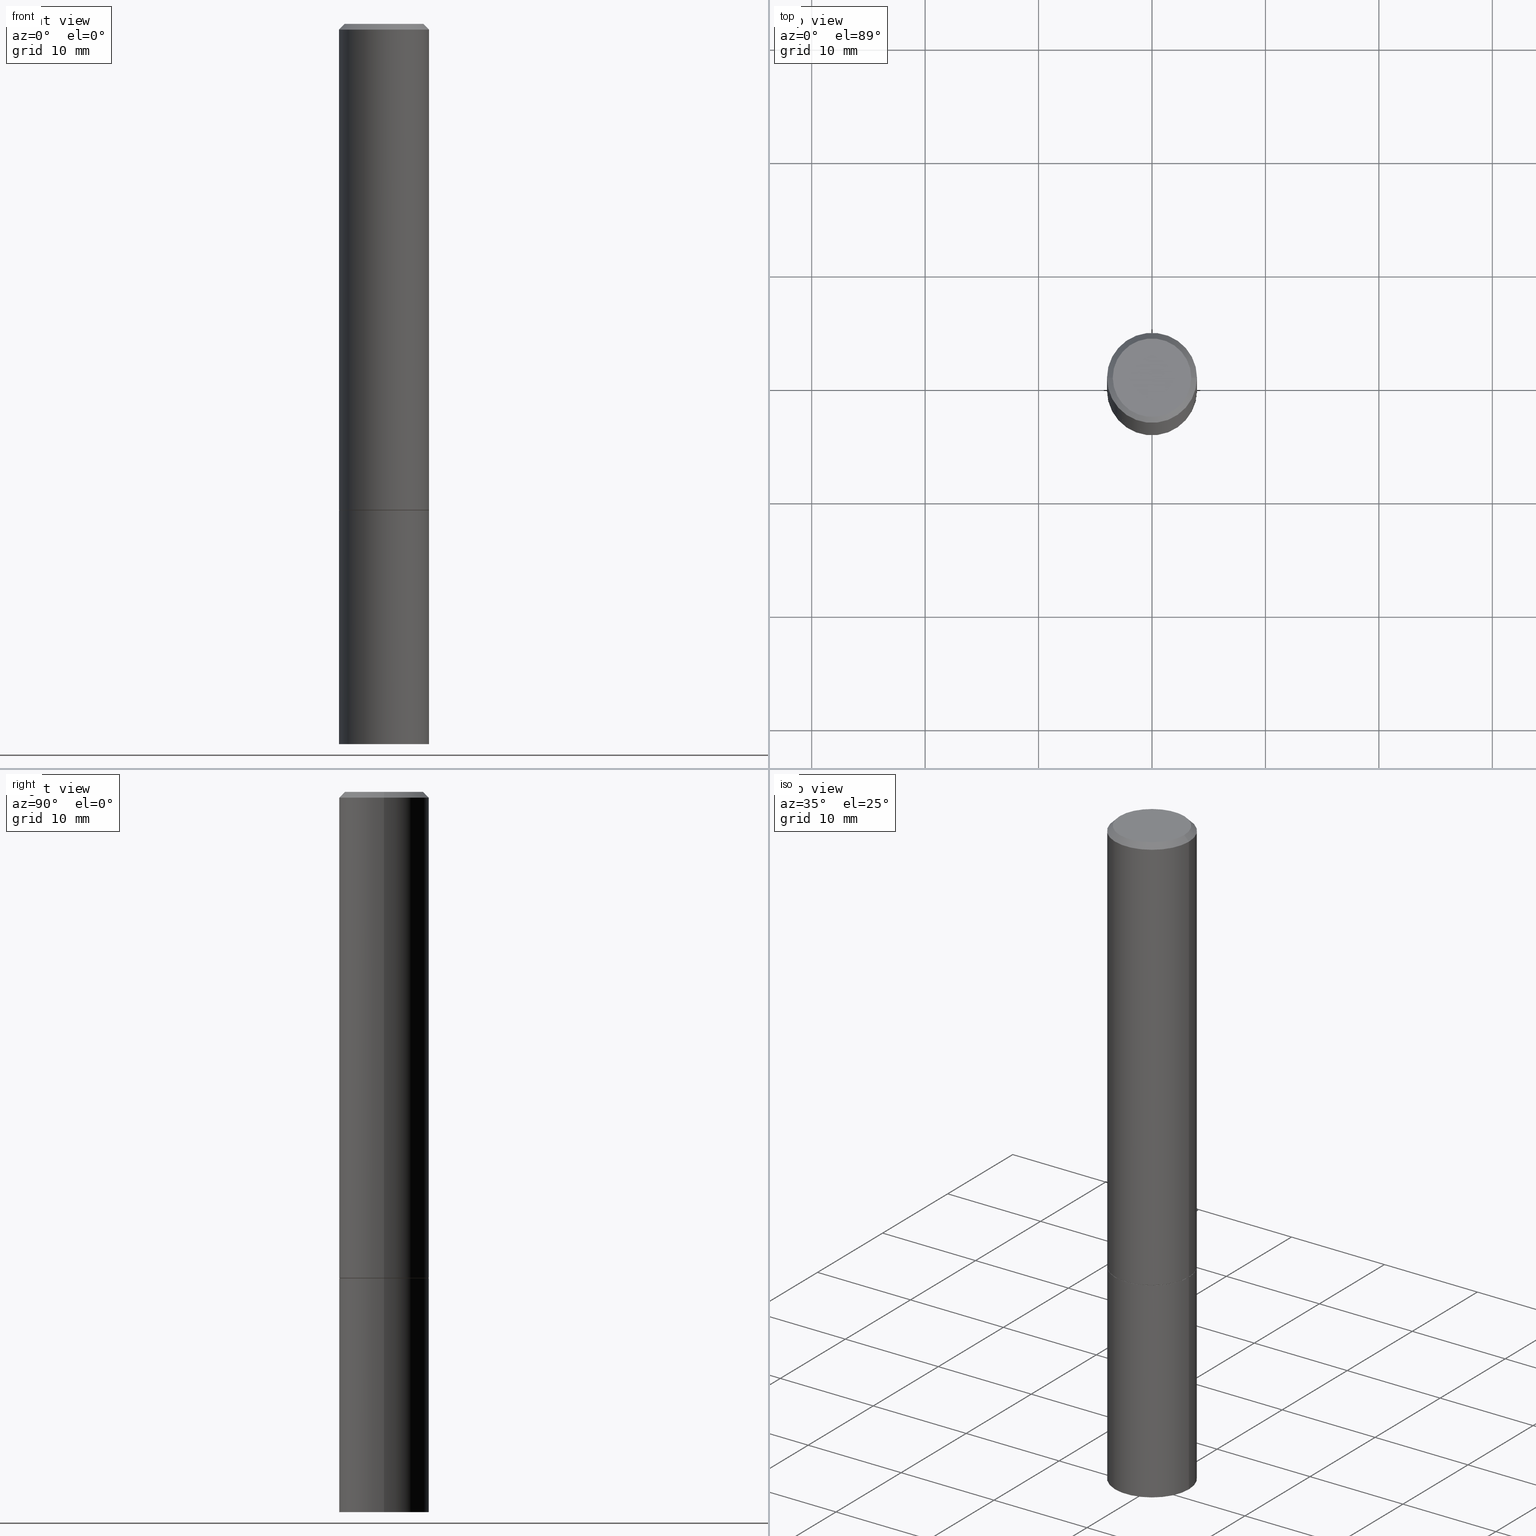
[diagram: canonical four-view strip — front | top / right | iso, engineering-drawing reading convention]
A machine part, canonical four-view strip (front | top / right | iso — engineering-drawing reading convention). The complete STEP part file that produces these views, byte-faithful:
ISO-10303-21;
HEADER;
FILE_DESCRIPTION (( 'STEP AP203' ),
    '1' );
FILE_NAME ('39739.STEP',
    '2024-02-28T01:10:47',
    ( '' ),
    ( '' ),
    'SwSTEP 2.0',
    'SolidWorks 2023',
    '' );
FILE_SCHEMA (( 'CONFIG_CONTROL_DESIGN' ));
ENDSEC;

DATA;
#1 = AXIS2_PLACEMENT_3D ( 'NONE', #130, #101, #365 ) ;
#2 = EDGE_CURVE ( 'NONE', #183, #64, #260, .T. ) ;
#3 = APPROVAL_DATE_TIME ( #26, #337 ) ;
#4 = AXIS2_PLACEMENT_3D ( 'NONE', #275, #273, #48 ) ;
#5 = ADVANCED_FACE ( 'NONE', ( #179 ), #160, .T. ) ;
#6 = DIRECTION ( 'NONE',  ( -2.445468806185136597E-29, 3.491481338843145583E-15, 1.000000000000000000 ) ) ;
#7 = APPROVAL ( #241, 'UNSPECIFIED' ) ;
#8 = EDGE_LOOP ( 'NONE', ( #320, #66 ) ) ;
#9 = VERTEX_POINT ( 'NONE', #216 ) ;
#10 = EDGE_LOOP ( 'NONE', ( #325, #111, #86, #240 ) ) ;
#11 = DIRECTION ( 'NONE',  ( 2.438088387897960049E-29, -3.491481338843145188E-15, -1.000000000000000000 ) ) ;
#12 = EDGE_LOOP ( 'NONE', ( #147, #141, #139, #120 ) ) ;
#13 = CARTESIAN_POINT ( 'NONE',  ( 0.1562499999999998057, -1.141782438928663330E-15, -0.02000000000000003511 ) ) ;
#14 = DIRECTION ( 'NONE',  ( 1.000000000000000000, -6.982962677686269077E-15, 0.000000000000000000 ) ) ;
#15 = CARTESIAN_POINT ( 'NONE',  ( 0.1552499999999999991, -6.977725455678023499E-15, -1.688000000000000167 ) ) ;
#16 = ORIENTED_EDGE ( 'NONE', *, *, #231, .F. ) ;
#17 = FACE_OUTER_BOUND ( 'NONE', #244, .T. ) ;
#18 = LOCAL_TIME ( 20, 10, 47.00000000000000000, #106 ) ;
#19 = PLANE ( 'NONE',  #230 ) ;
#20 = DIRECTION ( 'NONE',  ( 1.000000000000000000, -6.982962677686268288E-15, 0.000000000000000000 ) ) ;
#21 = DIRECTION ( 'NONE',  ( -2.445468806185136877E-29, 3.491481338843145188E-15, 1.000000000000000000 ) ) ;
#22 = DIRECTION ( 'NONE',  ( 1.000000000000000000, -6.982962677686269077E-15, 0.000000000000000000 ) ) ;
#23 = AXIS2_PLACEMENT_3D ( 'NONE', #250, #221, #83 ) ;
#24 = DIRECTION ( 'NONE',  ( 0.000000000000000000, 0.000000000000000000, 1.000000000000000000 ) ) ;
#25 = DIRECTION ( 'NONE',  ( 1.000000000000000000, -6.982962677686265133E-15, 0.000000000000000000 ) ) ;
#26 = DATE_AND_TIME ( #30, #340 ) ;
#27 = DIRECTION ( 'NONE',  ( 1.000000000000000000, -6.982962677686269077E-15, 0.000000000000000000 ) ) ;
#28 = CYLINDRICAL_SURFACE ( 'NONE', #190, 0.1562500000000000000 ) ;
#29 = CONICAL_SURFACE ( 'NONE', #167, 0.1552499999999999991, 0.7853981633974141952 ) ;
#30 = CALENDAR_DATE ( 2024, 27, 2 ) ;
#31 = CC_DESIGN_PERSON_AND_ORGANIZATION_ASSIGNMENT ( #211, #209, ( #223 ) ) ;
#32 = CIRCLE ( 'NONE', #204, 0.1362499999999998157 ) ;
#33 = CALENDAR_DATE ( 2024, 27, 2 ) ;
#34 = ORIENTED_EDGE ( 'NONE', *, *, #46, .F. ) ;
#35 = FACE_OUTER_BOUND ( 'NONE', #140, .T. ) ;
#36 = CC_DESIGN_DATE_AND_TIME_ASSIGNMENT ( #122, #289, ( #223 ) ) ;
#37 = PRODUCT_DEFINITION ( 'UNKNOWN', '', #272, #327 ) ;
#38 = AXIS2_PLACEMENT_3D ( 'NONE', #55, #226, #27 ) ;
#39 = EDGE_LOOP ( 'NONE', ( #239, #207, #296, #182 ) ) ;
#40 = ORIENTED_EDGE ( 'NONE', *, *, #352, .T. ) ;
#41 = ORIENTED_EDGE ( 'NONE', *, *, #231, .T. ) ;
#42 = LINE ( 'NONE', #339, #146 ) ;
#43 = DIRECTION ( 'NONE',  ( 1.000000000000000000, -6.982962677686269077E-15, 0.000000000000000000 ) ) ;
#44 = CLOSED_SHELL ( 'NONE', ( #315, #158, #105, #274 ) ) ;
#45 = DIRECTION ( 'NONE',  ( 1.000000000000000000, -6.982962677686265922E-15, 4.876176775795935793E-29 ) ) ;
#46 = EDGE_CURVE ( 'NONE', #355, #183, #310, .T. ) ;
#47 = DIRECTION ( 'NONE',  ( 2.438088387897960049E-29, -3.491481338843145188E-15, -1.000000000000000000 ) ) ;
#48 = DIRECTION ( 'NONE',  ( -1.000000000000000000, 6.982962677686266711E-15, 0.000000000000000000 ) ) ;
#49 =( NAMED_UNIT ( * ) SI_UNIT ( $, .STERADIAN. ) SOLID_ANGLE_UNIT ( ) );
#50 = DIRECTION ( 'NONE',  ( -2.445468806185136597E-29, 3.491481338843145583E-15, 1.000000000000000000 ) ) ;
#51 = CYLINDRICAL_SURFACE ( 'NONE', #117, 0.1562499999999999167 ) ;
#52 = CIRCLE ( 'NONE', #95, 0.1562500000000000000 ) ;
#53 = CARTESIAN_POINT ( 'NONE',  ( 0.000000000000000000, 0.000000000000000000, 0.000000000000000000 ) ) ;
#54 = CC_DESIGN_APPROVAL ( #7, ( #223 ) ) ;
#55 = CARTESIAN_POINT ( 'NONE',  ( 4.127951344840510809E-29, -5.893620499967230340E-15, -1.688000000000000167 ) ) ;
#56 = EDGE_CURVE ( 'NONE', #69, #346, #278, .T. ) ;
#57 = PERSON_AND_ORGANIZATION ( #197, #181 ) ;
#58 = CARTESIAN_POINT ( 'NONE',  ( 4.890937612370281041E-31, -6.982962677686302702E-17, -0.02000000000000003511 ) ) ;
#59 = CC_DESIGN_DATE_AND_TIME_ASSIGNMENT ( #61, #313, ( #37 ) ) ;
#60 = ORIENTED_EDGE ( 'NONE', *, *, #152, .F. ) ;
#61 = DATE_AND_TIME ( #203, #305 ) ;
#62 = ORIENTED_EDGE ( 'NONE', *, *, #168, .F. ) ;
#63 = CONICAL_SURFACE ( 'NONE', #212, 0.1562499999999998057, 0.7853981633974472798 ) ;
#64 = VERTEX_POINT ( 'NONE', #281 ) ;
#65 = EDGE_CURVE ( 'NONE', #346, #69, #52, .T. ) ;
#66 = ORIENTED_EDGE ( 'NONE', *, *, #165, .F. ) ;
#67 = CARTESIAN_POINT ( 'NONE',  ( -0.1562500000000000000, -1.869756298077466803E-15, -1.687000000000000055 ) ) ;
#68 = DIRECTION ( 'NONE',  ( -2.445468806185136597E-29, 3.491481338843145583E-15, 1.000000000000000000 ) ) ;
#69 = VERTEX_POINT ( 'NONE', #186 ) ;
#70 = ORIENTED_EDGE ( 'NONE', *, *, #112, .F. ) ;
#71 = EDGE_CURVE ( 'NONE', #210, #69, #249, .T. ) ;
#72 = ORIENTED_EDGE ( 'NONE', *, *, #56, .T. ) ;
#73 = DIRECTION ( 'NONE',  ( 1.000000000000000000, -6.982962677686266711E-15, 4.876176775795935232E-29 ) ) ;
#74 = COORDINATED_UNIVERSAL_TIME_OFFSET ( 5, 0, .BEHIND. ) ;
#75 = CARTESIAN_POINT ( 'NONE',  ( -0.1562499999999998057, 1.021258291611614692E-15, -0.02000000000000003511 ) ) ;
#76 = CARTESIAN_POINT ( 'NONE',  ( 4.125505876034325766E-29, -5.890129018628387333E-15, -1.687000000000000055 ) ) ;
#77 = AXIS2_PLACEMENT_3D ( 'NONE', #345, #336, #25 ) ;
#78 = DIRECTION ( 'NONE',  ( 2.438088387897960049E-29, -3.491481338843145188E-15, -1.000000000000000000 ) ) ;
#79 = DIRECTION ( 'NONE',  ( -2.445468806185136597E-29, 3.491481338843145583E-15, 1.000000000000000000 ) ) ;
#80 = CYLINDRICAL_SURFACE ( 'NONE', #298, 0.1562500000000000000 ) ;
#81 = CARTESIAN_POINT ( 'NONE',  ( 1.091087918388540310E-15, 0.1562499999999912570, -2.500000000000000444 ) ) ;
#82 = CIRCLE ( 'NONE', #288, 0.1552499999999999991 ) ;
#83 = DIRECTION ( 'NONE',  ( 1.000000000000000000, -6.982962677686266711E-15, 4.876176775795935232E-29 ) ) ;
#84 = COORDINATED_UNIVERSAL_TIME_OFFSET ( 5, 0, .BEHIND. ) ;
#85 = PERSON_AND_ORGANIZATION ( #197, #181 ) ;
#86 = ORIENTED_EDGE ( 'NONE', *, *, #46, .T. ) ;
#87 = ADVANCED_FACE ( 'NONE', ( #17 ), #247, .T. ) ;
#88 = CARTESIAN_POINT ( 'NONE',  ( 0.000000000000000000, 0.000000000000000000, 0.000000000000000000 ) ) ;
#89 = ORIENTED_EDGE ( 'NONE', *, *, #266, .T. ) ;
#90 = ORIENTED_EDGE ( 'NONE', *, *, #2, .T. ) ;
#91 = PRODUCT ( '39739', '39739', '', ( #228 ) ) ;
#92 = ORIENTED_EDGE ( 'NONE', *, *, #138, .T. ) ;
#93 = ORIENTED_EDGE ( 'NONE', *, *, #71, .F. ) ;
#94 = DIRECTION ( 'NONE',  ( 1.000000000000000000, -6.982962677686266711E-15, 4.876176775795936353E-29 ) ) ;
#95 = AXIS2_PLACEMENT_3D ( 'NONE', #76, #132, #303 ) ;
#96 = CARTESIAN_POINT ( 'NONE',  ( 4.127951344840510809E-29, -5.893620499967230340E-15, -1.688000000000000167 ) ) ;
#97 = CARTESIAN_POINT ( 'NONE',  ( 6.113672015462842613E-29, -8.728703347107864943E-15, -2.500000000000000000 ) ) ;
#98 = DIRECTION ( 'NONE',  ( 1.000000000000000000, -6.982962677686268288E-15, 0.000000000000000000 ) ) ;
#99 = CARTESIAN_POINT ( 'NONE',  ( 0.000000000000000000, 0.000000000000000000, 0.000000000000000000 ) ) ;
#100 = EDGE_CURVE ( 'NONE', #113, #353, #219, .T. ) ;
#101 = DIRECTION ( 'NONE',  ( -2.445468806185136597E-29, 3.491481338843145583E-15, 1.000000000000000000 ) ) ;
#102 = VECTOR ( 'NONE', #330, 39.37007874015748143 ) ;
#103 = CARTESIAN_POINT ( 'NONE',  ( -0.1562499999999998057, 1.021258291611614692E-15, -0.02000000000000003511 ) ) ;
#104 = CARTESIAN_POINT ( 'NONE',  ( 1.091087918388520392E-15, 0.1562499999999940881, -1.688000000000000611 ) ) ;
#105 = ADVANCED_FACE ( 'NONE', ( #184 ), #19, .F. ) ;
#106 = COORDINATED_UNIVERSAL_TIME_OFFSET ( 5, 0, .BEHIND. ) ;
#107 = APPROVAL_PERSON_ORGANIZATION ( #237, #337, #344 ) ;
#108 = PERSON_AND_ORGANIZATION_ROLE ( 'creator' ) ;
#109 = CARTESIAN_POINT ( 'NONE',  ( 0.1552499999999999991, -6.977725455678023499E-15, -1.688000000000000167 ) ) ;
#110 = VECTOR ( 'NONE', #21, 39.37007874015748143 ) ;
#111 = ORIENTED_EDGE ( 'NONE', *, *, #165, .T. ) ;
#112 = EDGE_CURVE ( 'NONE', #264, #353, #166, .T. ) ;
#113 = VERTEX_POINT ( 'NONE', #338 ) ;
#114 = EDGE_LOOP ( 'NONE', ( #60, #149, #301, #70 ) ) ;
#115 = COORDINATED_UNIVERSAL_TIME_OFFSET ( 5, 0, .BEHIND. ) ;
#116 = ORIENTED_EDGE ( 'NONE', *, *, #56, .F. ) ;
#117 = AXIS2_PLACEMENT_3D ( 'NONE', #361, #280, #121 ) ;
#118 = APPROVAL_PERSON_ORGANIZATION ( #176, #7, #331 ) ;
#119 = VERTEX_POINT ( 'NONE', #251 ) ;
#120 = ORIENTED_EDGE ( 'NONE', *, *, #128, .F. ) ;
#121 = DIRECTION ( 'NONE',  ( 1.000000000000000000, -6.982962677686265133E-15, 4.876176775795935232E-29 ) ) ;
#122 = DATE_AND_TIME ( #214, #285 ) ;
#123 = VECTOR ( 'NONE', #356, 39.37007874015748143 ) ;
#124 =( GEOMETRIC_REPRESENTATION_CONTEXT ( 3 ) GLOBAL_UNCERTAINTY_ASSIGNED_CONTEXT ( ( #332 ) ) GLOBAL_UNIT_ASSIGNED_CONTEXT ( ( #192, #131, #49 ) ) REPRESENTATION_CONTEXT ( 'NONE', 'WORKASPACE' ) );
#125 = LINE ( 'NONE', #75, #123 ) ;
#126 = FACE_OUTER_BOUND ( 'NONE', #245, .T. ) ;
#127 = CARTESIAN_POINT ( 'NONE',  ( 0.1562500000000000000, -1.091087918388479174E-15, 7.619026212181150377E-30 ) ) ;
#128 = EDGE_CURVE ( 'NONE', #9, #264, #125, .T. ) ;
#129 = LENGTH_MEASURE_WITH_UNIT ( LENGTH_MEASURE( 0.02539999999999999897 ), #217 );
#130 = CARTESIAN_POINT ( 'NONE',  ( 6.113672015462842613E-29, -8.728703347107864943E-15, -2.500000000000000000 ) ) ;
#131 =( NAMED_UNIT ( * ) PLANE_ANGLE_UNIT ( ) SI_UNIT ( $, .RADIAN. ) );
#132 = DIRECTION ( 'NONE',  ( -2.445468806185136597E-29, 3.491481338843145583E-15, 1.000000000000000000 ) ) ;
#133 = DIRECTION ( 'NONE',  ( 1.000000000000000000, 0.000000000000000000, 0.000000000000000000 ) ) ;
#134 = DIRECTION ( 'NONE',  ( 1.000000000000000000, -6.982962677686266711E-15, 4.876176775795936353E-29 ) ) ;
#135 = APPROVAL_STATUS ( 'not_yet_approved' ) ;
#136 = PERSON_AND_ORGANIZATION_ROLE ( 'design_owner' ) ;
#137 = VECTOR ( 'NONE', #319, 39.37007874015748143 ) ;
#138 = EDGE_CURVE ( 'NONE', #355, #322, #362, .T. ) ;
#139 = ORIENTED_EDGE ( 'NONE', *, *, #236, .T. ) ;
#140 = EDGE_LOOP ( 'NONE', ( #143, #200 ) ) ;
#141 = ORIENTED_EDGE ( 'NONE', *, *, #100, .T. ) ;
#142 = PLANE ( 'NONE',  #171 ) ;
#143 = ORIENTED_EDGE ( 'NONE', *, *, #297, .T. ) ;
#144 = ADVANCED_FACE ( 'NONE', ( #193 ), #51, .T. ) ;
#145 = CARTESIAN_POINT ( 'NONE',  ( -0.1562500000000000000, 1.110223024625156540E-15, -7.685836078523291160E-30 ) ) ;
#146 = VECTOR ( 'NONE', #195, 39.37007874015748854 ) ;
#147 = ORIENTED_EDGE ( 'NONE', *, *, #185, .F. ) ;
#148 = PERSON_AND_ORGANIZATION_ROLE ( 'design_supplier' ) ;
#149 = ORIENTED_EDGE ( 'NONE', *, *, #65, .T. ) ;
#150 = CARTESIAN_POINT ( 'NONE',  ( 0.000000000000000000, 0.000000000000000000, 0.000000000000000000 ) ) ;
#151 = VECTOR ( 'NONE', #246, 39.37007874015748143 ) ;
#152 = EDGE_CURVE ( 'NONE', #346, #264, #253, .T. ) ;
#153 = PLANE ( 'NONE',  #180 ) ;
#154 = CARTESIAN_POINT ( 'NONE',  ( 4.890937612370281041E-31, -6.982962677686302702E-17, -0.02000000000000003511 ) ) ;
#155 = APPLICATION_CONTEXT ( 'configuration controlled 3d designs of mechanical parts and assemblies' ) ;
#156 = CARTESIAN_POINT ( 'NONE',  ( 4.127951344840510809E-29, -5.893620499967230340E-15, -1.688000000000000167 ) ) ;
#157 = DIRECTION ( 'NONE',  ( 1.000000000000000000, -6.982962677686265133E-15, 0.000000000000000000 ) ) ;
#158 = ADVANCED_FACE ( 'NONE', ( #213 ), #153, .T. ) ;
#159 = FACE_OUTER_BOUND ( 'NONE', #357, .T. ) ;
#160 = CONICAL_SURFACE ( 'NONE', #4, 0.1562499999999998057, 0.7853981633974472798 ) ;
#161 = CARTESIAN_POINT ( 'NONE',  ( 0.1562500000000000000, -6.984708418355709513E-15, -1.688000000000000167 ) ) ;
#162 = CC_DESIGN_APPROVAL ( #178, ( #272 ) ) ;
#163 = PRODUCT_RELATED_PRODUCT_CATEGORY ( 'detail', '', ( #91 ) ) ;
#164 = CYLINDRICAL_SURFACE ( 'NONE', #363, 0.1562499999999999167 ) ;
#165 = EDGE_CURVE ( 'NONE', #322, #355, #242, .T. ) ;
#166 = CIRCLE ( 'NONE', #282, 0.1562499999999998057 ) ;
#167 = AXIS2_PLACEMENT_3D ( 'NONE', #156, #79, #20 ) ;
#168 = EDGE_CURVE ( 'NONE', #119, #346, #42, .T. ) ;
#169 = DIMENSIONAL_EXPONENTS ( 1.000000000000000000, 0.000000000000000000, 0.000000000000000000, 0.000000000000000000, 0.000000000000000000, 0.000000000000000000, 0.000000000000000000 ) ;
#170 = PERSON_AND_ORGANIZATION ( #197, #181 ) ;
#171 = AXIS2_PLACEMENT_3D ( 'NONE', #270, #11, #323 ) ;
#172 = ORIENTED_EDGE ( 'NONE', *, *, #215, .T. ) ;
#173 = SHAPE_DEFINITION_REPRESENTATION ( #263, #194 ) ;
#174 = EDGE_LOOP ( 'NONE', ( #90, #89 ) ) ;
#175 = EDGE_LOOP ( 'NONE', ( #72, #267, #350, #205 ) ) ;
#176 = PERSON_AND_ORGANIZATION ( #197, #181 ) ;
#177 = LINE ( 'NONE', #145, #349 ) ;
#178 = APPROVAL ( #135, 'UNSPECIFIED' ) ;
#179 = FACE_OUTER_BOUND ( 'NONE', #12, .T. ) ;
#180 = AXIS2_PLACEMENT_3D ( 'NONE', #81, #78, #227 ) ;
#181 = ORGANIZATION ( 'UNSPECIFIED', 'UNSPECIFIED', '' ) ;
#182 = ORIENTED_EDGE ( 'NONE', *, *, #112, .T. ) ;
#183 = VERTEX_POINT ( 'NONE', #161 ) ;
#184 = FACE_OUTER_BOUND ( 'NONE', #174, .T. ) ;
#185 = EDGE_CURVE ( 'NONE', #113, #9, #32, .T. ) ;
#186 = CARTESIAN_POINT ( 'NONE',  ( 0.1562500000000000000, -6.981216937016866506E-15, -1.687000000000000055 ) ) ;
#187 = APPLICATION_CONTEXT ( 'configuration controlled 3d designs of mechanical parts and assemblies' ) ;
#188 = CARTESIAN_POINT ( 'NONE',  ( 4.127951344840510809E-29, -5.893620499967230340E-15, -1.688000000000000167 ) ) ;
#189 = AXIS2_PLACEMENT_3D ( 'NONE', #191, #334, #22 ) ;
#190 = AXIS2_PLACEMENT_3D ( 'NONE', #88, #292, #94 ) ;
#191 = CARTESIAN_POINT ( 'NONE',  ( 4.125505876034325766E-29, -5.890129018628387333E-15, -1.687000000000000055 ) ) ;
#192 =( CONVERSION_BASED_UNIT ( 'INCH', #129 ) LENGTH_UNIT ( ) NAMED_UNIT ( #169 ) );
#193 = FACE_OUTER_BOUND ( 'NONE', #114, .T. ) ;
#194 = ADVANCED_BREP_SHAPE_REPRESENTATION ( '39739', ( #218, #224, #321 ), #124 ) ;
#195 = DIRECTION ( 'NONE',  ( -0.7071067811865232589, 7.493145998870265808E-15, 0.7071067811865715536 ) ) ;
#196 = AXIS2_PLACEMENT_3D ( 'NONE', #97, #302, #43 ) ;
#197 = PERSON ( 'UNSPECIFIED', 'UNSPECIFIED', 'UNSPECIFIED', ('UNSPECIFIED'), ('UNSPECIFIED'), ('UNSPECIFIED') ) ;
#198 = EDGE_CURVE ( 'NONE', #69, #353, #248, .T. ) ;
#199 = DATE_AND_TIME ( #235, #18 ) ;
#200 = ORIENTED_EDGE ( 'NONE', *, *, #185, .T. ) ;
#201 = DIRECTION ( 'NONE',  ( 1.000000000000000000, -6.982962677686268288E-15, 0.000000000000000000 ) ) ;
#202 = AXIS2_PLACEMENT_3D ( 'NONE', #347, #6, #238 ) ;
#203 = CALENDAR_DATE ( 2024, 27, 2 ) ;
#204 = AXIS2_PLACEMENT_3D ( 'NONE', #150, #277, #73 ) ;
#205 = ORIENTED_EDGE ( 'NONE', *, *, #198, .F. ) ;
#206 = CARTESIAN_POINT ( 'NONE',  ( 4.127951344840510809E-29, -5.893620499967230340E-15, -1.688000000000000167 ) ) ;
#207 = ORIENTED_EDGE ( 'NONE', *, *, #297, .F. ) ;
#208 = CARTESIAN_POINT ( 'NONE',  ( -0.1562500000000000000, -6.200938898912389918E-15, -2.500000000000000000 ) ) ;
#209 = PERSON_AND_ORGANIZATION_ROLE ( 'classification_officer' ) ;
#210 = VERTEX_POINT ( 'NONE', #109 ) ;
#211 = PERSON_AND_ORGANIZATION ( #197, #181 ) ;
#212 = AXIS2_PLACEMENT_3D ( 'NONE', #58, #314, #265 ) ;
#213 = FACE_OUTER_BOUND ( 'NONE', #8, .T. ) ;
#214 = CALENDAR_DATE ( 2024, 27, 2 ) ;
#215 = EDGE_CURVE ( 'NONE', #119, #210, #82, .T. ) ;
#216 = CARTESIAN_POINT ( 'NONE',  ( -0.1362499999999998157, 9.863434782231836346E-16, -6.775751096333130074E-30 ) ) ;
#217 =( LENGTH_UNIT ( ) NAMED_UNIT ( * ) SI_UNIT ( $, .METRE. ) );
#218 = MANIFOLD_SOLID_BREP ( 'Body-Move/Copy2[1]', #44 ) ;
#219 = LINE ( 'NONE', #307, #151 ) ;
#220 = DIRECTION ( 'NONE',  ( -2.445468806185136597E-29, 3.491481338843145583E-15, 1.000000000000000000 ) ) ;
#221 = DIRECTION ( 'NONE',  ( -2.445468806185136597E-29, 3.491481338843145583E-15, 1.000000000000000000 ) ) ;
#222 = CIRCLE ( 'NONE', #202, 0.1552499999999999991 ) ;
#223 = SECURITY_CLASSIFICATION ( '', '', #294 ) ;
#224 = MANIFOLD_SOLID_BREP ( 'Body-Move/Copy2[2]', #317 ) ;
#225 = DIRECTION ( 'NONE',  ( -2.445468806185136597E-29, 3.491481338843145583E-15, 1.000000000000000000 ) ) ;
#226 = DIRECTION ( 'NONE',  ( -2.445468806185136597E-29, 3.491481338843145583E-15, 1.000000000000000000 ) ) ;
#227 = DIRECTION ( 'NONE',  ( -1.000000000000000000, 6.982962677686265922E-15, -4.876176775795935793E-29 ) ) ;
#228 = MECHANICAL_CONTEXT ( 'NONE', #187, 'mechanical' ) ;
#229 = PLANE ( 'NONE',  #304 ) ;
#230 = AXIS2_PLACEMENT_3D ( 'NONE', #104, #47, #309 ) ;
#231 = EDGE_CURVE ( 'NONE', #210, #119, #222, .T. ) ;
#232 = DIRECTION ( 'NONE',  ( -2.438088387897960049E-29, 3.491481338843145188E-15, 1.000000000000000000 ) ) ;
#233 = CARTESIAN_POINT ( 'NONE',  ( 4.127951344840510809E-29, -5.893620499967230340E-15, -1.688000000000000167 ) ) ;
#234 = APPLICATION_PROTOCOL_DEFINITION ( 'international standard', 'config_control_design', 1994, #155 ) ;
#235 = CALENDAR_DATE ( 2024, 27, 2 ) ;
#236 = EDGE_CURVE ( 'NONE', #353, #264, #257, .T. ) ;
#237 = PERSON_AND_ORGANIZATION ( #197, #181 ) ;
#238 = DIRECTION ( 'NONE',  ( 1.000000000000000000, -6.982962677686268288E-15, 0.000000000000000000 ) ) ;
#239 = ORIENTED_EDGE ( 'NONE', *, *, #100, .F. ) ;
#240 = ORIENTED_EDGE ( 'NONE', *, *, #266, .F. ) ;
#241 = APPROVAL_STATUS ( 'not_yet_approved' ) ;
#242 = CIRCLE ( 'NONE', #1, 0.1562500000000000000 ) ;
#243 = CC_DESIGN_APPROVAL ( #337, ( #37 ) ) ;
#244 = EDGE_LOOP ( 'NONE', ( #41, #291, #116, #93 ) ) ;
#245 = EDGE_LOOP ( 'NONE', ( #62, #172, #300, #295 ) ) ;
#246 = DIRECTION ( 'NONE',  ( 0.7071067811865467956, -7.319954787623254468E-15, -0.7071067811865482389 ) ) ;
#247 = CONICAL_SURFACE ( 'NONE', #252, 0.1552499999999999991, 0.7853981633974141952 ) ;
#248 = LINE ( 'NONE', #358, #137 ) ;
#249 = LINE ( 'NONE', #15, #343 ) ;
#250 = CARTESIAN_POINT ( 'NONE',  ( 0.000000000000000000, 0.000000000000000000, 0.000000000000000000 ) ) ;
#251 = CARTESIAN_POINT ( 'NONE',  ( -0.1552499999999999991, -4.785204448351452406E-15, -1.688000000000000167 ) ) ;
#252 = AXIS2_PLACEMENT_3D ( 'NONE', #96, #360, #98 ) ;
#253 = LINE ( 'NONE', #333, #110 ) ;
#254 = FACE_OUTER_BOUND ( 'NONE', #10, .T. ) ;
#255 = APPROVAL_ROLE ( '' ) ;
#256 = CARTESIAN_POINT ( 'NONE',  ( 0.000000000000000000, 0.000000000000000000, 0.000000000000000000 ) ) ;
#257 = CIRCLE ( 'NONE', #77, 0.1562499999999998057 ) ;
#258 = DIRECTION ( 'NONE',  ( -2.445468806185136597E-29, 3.491481338843145583E-15, 1.000000000000000000 ) ) ;
#259 = PERSON_AND_ORGANIZATION ( #197, #181 ) ;
#260 = CIRCLE ( 'NONE', #348, 0.1562500000000000000 ) ;
#261 = APPROVAL_PERSON_ORGANIZATION ( #170, #178, #255 ) ;
#262 = COORDINATED_UNIVERSAL_TIME_OFFSET ( 5, 0, .BEHIND. ) ;
#263 = PRODUCT_DEFINITION_SHAPE ( 'NONE', 'NONE',  #37 ) ;
#264 = VERTEX_POINT ( 'NONE', #103 ) ;
#265 = DIRECTION ( 'NONE',  ( -1.000000000000000000, 6.982962677686266711E-15, 0.000000000000000000 ) ) ;
#266 = EDGE_CURVE ( 'NONE', #64, #183, #284, .T. ) ;
#267 = ORIENTED_EDGE ( 'NONE', *, *, #152, .T. ) ;
#268 = DATE_AND_TIME ( #33, #329 ) ;
#269 = CC_DESIGN_PERSON_AND_ORGANIZATION_ASSIGNMENT ( #316, #148, ( #272 ) ) ;
#270 = CARTESIAN_POINT ( 'NONE',  ( 9.514286648347523799E-16, 0.1362499999999998157, -4.757143324173778663E-16 ) ) ;
#271 = DIRECTION ( 'NONE',  ( -2.445468806185136877E-29, 3.491481338843145188E-15, 1.000000000000000000 ) ) ;
#272 = PRODUCT_DEFINITION_FORMATION_WITH_SPECIFIED_SOURCE ( 'ANY', '', #91, .NOT_KNOWN. ) ;
#273 = DIRECTION ( 'NONE',  ( 2.445468806185136597E-29, -3.491481338843145583E-15, -1.000000000000000000 ) ) ;
#274 = ADVANCED_FACE ( 'NONE', ( #254 ), #80, .T. ) ;
#275 = CARTESIAN_POINT ( 'NONE',  ( 4.890937612370281041E-31, -6.982962677686302702E-17, -0.02000000000000003511 ) ) ;
#276 = CC_DESIGN_PERSON_AND_ORGANIZATION_ASSIGNMENT ( #57, #283, ( #272 ) ) ;
#277 = DIRECTION ( 'NONE',  ( -2.445468806185136597E-29, 3.491481338843145583E-15, 1.000000000000000000 ) ) ;
#278 = CIRCLE ( 'NONE', #189, 0.1562500000000000000 ) ;
#279 = DIRECTION ( 'NONE',  ( 0.7071067811865232589, -2.468850131082003836E-15, 0.7071067811865715536 ) ) ;
#280 = DIRECTION ( 'NONE',  ( -2.445468806185136597E-29, 3.491481338843145583E-15, 1.000000000000000000 ) ) ;
#281 = CARTESIAN_POINT ( 'NONE',  ( -0.1562500000000000000, -6.200938898912389918E-15, -1.688000000000000167 ) ) ;
#282 = AXIS2_PLACEMENT_3D ( 'NONE', #154, #225, #157 ) ;
#283 = PERSON_AND_ORGANIZATION_ROLE ( 'creator' ) ;
#284 = CIRCLE ( 'NONE', #38, 0.1562500000000000000 ) ;
#285 = LOCAL_TIME ( 20, 10, 47.00000000000000000, #115 ) ;
#286 = ADVANCED_FACE ( 'NONE', ( #159 ), #229, .F. ) ;
#287 = FACE_OUTER_BOUND ( 'NONE', #326, .T. ) ;
#288 = AXIS2_PLACEMENT_3D ( 'NONE', #233, #258, #201 ) ;
#289 = DATE_TIME_ROLE ( 'classification_date' ) ;
#290 = ORIENTED_EDGE ( 'NONE', *, *, #215, .F. ) ;
#291 = ORIENTED_EDGE ( 'NONE', *, *, #168, .T. ) ;
#292 = DIRECTION ( 'NONE',  ( -2.445468806185136597E-29, 3.491481338843145583E-15, 1.000000000000000000 ) ) ;
#293 = ORIENTED_EDGE ( 'NONE', *, *, #2, .F. ) ;
#294 = SECURITY_CLASSIFICATION_LEVEL ( 'unclassified' ) ;
#295 = ORIENTED_EDGE ( 'NONE', *, *, #65, .F. ) ;
#296 = ORIENTED_EDGE ( 'NONE', *, *, #128, .T. ) ;
#297 = EDGE_CURVE ( 'NONE', #9, #113, #328, .T. ) ;
#298 = AXIS2_PLACEMENT_3D ( 'NONE', #256, #50, #134 ) ;
#299 = CC_DESIGN_SECURITY_CLASSIFICATION ( #223, ( #272 ) ) ;
#300 = ORIENTED_EDGE ( 'NONE', *, *, #71, .T. ) ;
#301 = ORIENTED_EDGE ( 'NONE', *, *, #198, .T. ) ;
#302 = DIRECTION ( 'NONE',  ( -2.445468806185136597E-29, 3.491481338843145583E-15, 1.000000000000000000 ) ) ;
#303 = DIRECTION ( 'NONE',  ( 1.000000000000000000, -6.982962677686269077E-15, 0.000000000000000000 ) ) ;
#304 = AXIS2_PLACEMENT_3D ( 'NONE', #188, #232, #45 ) ;
#305 = LOCAL_TIME ( 20, 10, 47.00000000000000000, #262 ) ;
#306 = CC_DESIGN_PERSON_AND_ORGANIZATION_ASSIGNMENT ( #259, #136, ( #91 ) ) ;
#307 = CARTESIAN_POINT ( 'NONE',  ( 0.1562499999999998057, -1.141782438928663330E-15, -0.02000000000000003511 ) ) ;
#308 = CC_DESIGN_PERSON_AND_ORGANIZATION_ASSIGNMENT ( #85, #108, ( #37 ) ) ;
#309 = DIRECTION ( 'NONE',  ( -1.000000000000000000, 6.982962677686265922E-15, -4.876176775795935793E-29 ) ) ;
#310 = LINE ( 'NONE', #127, #102 ) ;
#311 = ADVANCED_FACE ( 'NONE', ( #318 ), #63, .T. ) ;
#312 = FACE_OUTER_BOUND ( 'NONE', #175, .T. ) ;
#313 = DATE_TIME_ROLE ( 'creation_date' ) ;
#314 = DIRECTION ( 'NONE',  ( 2.445468806185136597E-29, -3.491481338843145583E-15, -1.000000000000000000 ) ) ;
#315 = ADVANCED_FACE ( 'NONE', ( #287 ), #28, .T. ) ;
#316 = PERSON_AND_ORGANIZATION ( #197, #181 ) ;
#317 = CLOSED_SHELL ( 'NONE', ( #87, #359, #5, #311, #144, #364, #286, #324 ) ) ;
#318 = FACE_OUTER_BOUND ( 'NONE', #39, .T. ) ;
#319 = DIRECTION ( 'NONE',  ( -2.445468806185136877E-29, 3.491481338843145188E-15, 1.000000000000000000 ) ) ;
#320 = ORIENTED_EDGE ( 'NONE', *, *, #138, .F. ) ;
#321 = AXIS2_PLACEMENT_3D ( 'NONE', #53, #24, #133 ) ;
#322 = VERTEX_POINT ( 'NONE', #208 ) ;
#323 = DIRECTION ( 'NONE',  ( -1.000000000000000000, 6.982962677686265922E-15, -4.876176775795935793E-29 ) ) ;
#324 = ADVANCED_FACE ( 'NONE', ( #35 ), #142, .F. ) ;
#325 = ORIENTED_EDGE ( 'NONE', *, *, #352, .F. ) ;
#326 = EDGE_LOOP ( 'NONE', ( #92, #40, #293, #34 ) ) ;
#327 = DESIGN_CONTEXT ( 'detailed design', #155, 'design' ) ;
#328 = CIRCLE ( 'NONE', #23, 0.1362499999999998157 ) ;
#329 = LOCAL_TIME ( 20, 10, 47.00000000000000000, #74 ) ;
#330 = DIRECTION ( 'NONE',  ( -2.445468806185136877E-29, 3.491481338843145188E-15, 1.000000000000000000 ) ) ;
#331 = APPROVAL_ROLE ( '' ) ;
#332 = UNCERTAINTY_MEASURE_WITH_UNIT (LENGTH_MEASURE( 1.000000000000000082E-05 ), #192, 'distance_accuracy_value', 'NONE');
#333 = CARTESIAN_POINT ( 'NONE',  ( -0.1562499999999999167, 1.110223024625155949E-15, -7.685836078523285555E-30 ) ) ;
#334 = DIRECTION ( 'NONE',  ( -2.445468806185136597E-29, 3.491481338843145583E-15, 1.000000000000000000 ) ) ;
#335 = DIRECTION ( 'NONE',  ( 1.000000000000000000, -6.982962677686265133E-15, 4.876176775795935232E-29 ) ) ;
#336 = DIRECTION ( 'NONE',  ( -2.445468806185136597E-29, 3.491481338843145583E-15, 1.000000000000000000 ) ) ;
#337 = APPROVAL ( #342, 'UNSPECIFIED' ) ;
#338 = CARTESIAN_POINT ( 'NONE',  ( 0.1362499999999998157, -1.038262645562516744E-15, 6.957025900226686667E-30 ) ) ;
#339 = CARTESIAN_POINT ( 'NONE',  ( -0.1552499999999999991, -4.790502902699674808E-15, -1.688000000000000167 ) ) ;
#340 = LOCAL_TIME ( 20, 10, 47.00000000000000000, #84 ) ;
#341 = APPROVAL_DATE_TIME ( #199, #178 ) ;
#342 = APPROVAL_STATUS ( 'not_yet_approved' ) ;
#343 = VECTOR ( 'NONE', #279, 39.37007874015748854 ) ;
#344 = APPROVAL_ROLE ( '' ) ;
#345 = CARTESIAN_POINT ( 'NONE',  ( 4.890937612370281041E-31, -6.982962677686302702E-17, -0.02000000000000003511 ) ) ;
#346 = VERTEX_POINT ( 'NONE', #67 ) ;
#347 = CARTESIAN_POINT ( 'NONE',  ( 4.127951344840510809E-29, -5.893620499967230340E-15, -1.688000000000000167 ) ) ;
#348 = AXIS2_PLACEMENT_3D ( 'NONE', #206, #68, #14 ) ;
#349 = VECTOR ( 'NONE', #271, 39.37007874015748143 ) ;
#350 = ORIENTED_EDGE ( 'NONE', *, *, #236, .F. ) ;
#351 = APPROVAL_DATE_TIME ( #268, #7 ) ;
#352 = EDGE_CURVE ( 'NONE', #322, #64, #177, .T. ) ;
#353 = VERTEX_POINT ( 'NONE', #13 ) ;
#354 = CARTESIAN_POINT ( 'NONE',  ( 0.1562500000000000000, -9.819791265496344905E-15, -2.500000000000000000 ) ) ;
#355 = VERTEX_POINT ( 'NONE', #354 ) ;
#356 = DIRECTION ( 'NONE',  ( -0.7071067811865467956, 2.468850131082249172E-15, -0.7071067811865482389 ) ) ;
#357 = EDGE_LOOP ( 'NONE', ( #16, #290 ) ) ;
#358 = CARTESIAN_POINT ( 'NONE',  ( 0.1562499999999999167, -1.091087918388478385E-15, 7.619026212181144772E-30 ) ) ;
#359 = ADVANCED_FACE ( 'NONE', ( #312 ), #164, .T. ) ;
#360 = DIRECTION ( 'NONE',  ( -2.445468806185136597E-29, 3.491481338843145583E-15, 1.000000000000000000 ) ) ;
#361 = CARTESIAN_POINT ( 'NONE',  ( 0.000000000000000000, 0.000000000000000000, 0.000000000000000000 ) ) ;
#362 = CIRCLE ( 'NONE', #196, 0.1562500000000000000 ) ;
#363 = AXIS2_PLACEMENT_3D ( 'NONE', #99, #220, #335 ) ;
#364 = ADVANCED_FACE ( 'NONE', ( #126 ), #29, .T. ) ;
#365 = DIRECTION ( 'NONE',  ( 1.000000000000000000, -6.982962677686269077E-15, 0.000000000000000000 ) ) ;
#366 = APPLICATION_PROTOCOL_DEFINITION ( 'international standard', 'config_control_design', 1994, #187 ) ;
ENDSEC;
END-ISO-10303-21;
